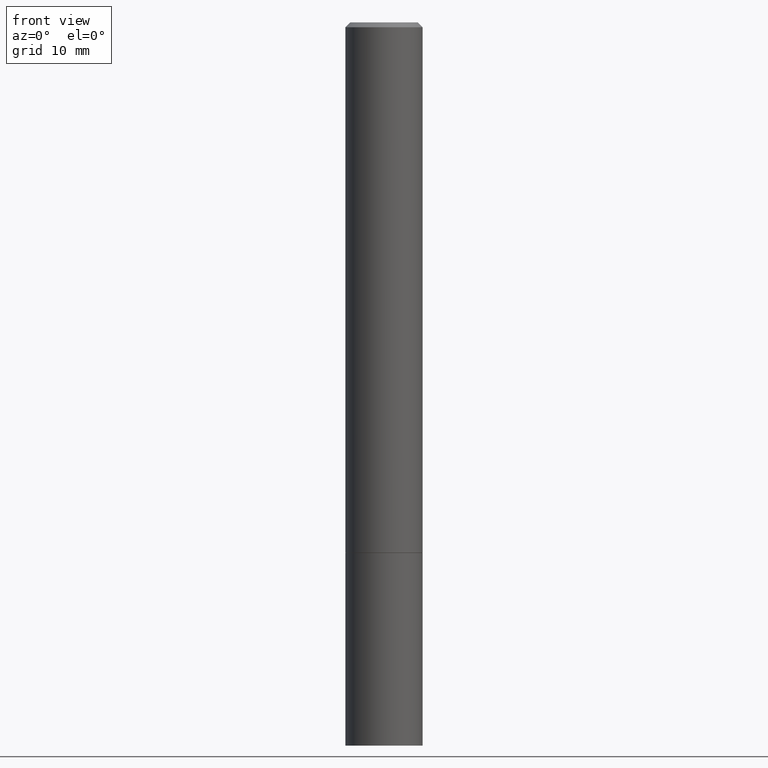
[diagram: clean part render]
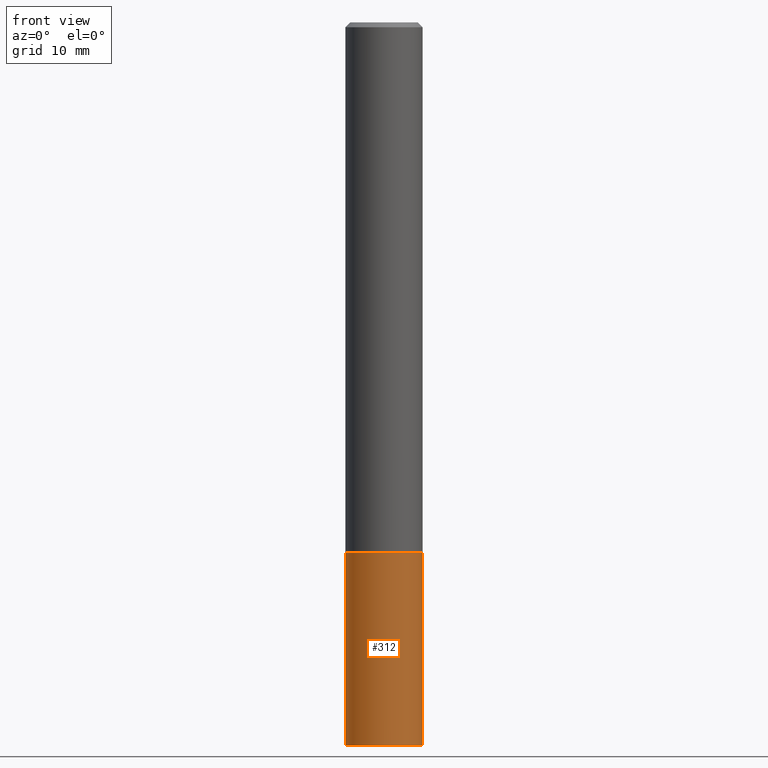
[diagram: same view with one face highlighted and labeled with its STEP entity id]
A machine part, front view. The second image highlights one B-rep face of the part: STEP entity #312.
In plain terms, the highlighted cylindrical surface (partial cylindrical patch) has radius 4.0005 mm, axis along (-0, 0, 1).
Its self-contained STEP definition (entity closure, byte-faithful):
#3 = CARTESIAN_POINT ( 'NONE',  ( 0.1575000000000000011, -8.660270312866534114E-15, -2.165399999999999991 ) ) ;
#16 = CARTESIAN_POINT ( 'NONE',  ( 0.1575000000000000011, -1.099816621735586889E-15, 7.679978421878598033E-30 ) ) ;
#26 = ORIENTED_EDGE ( 'NONE', *, *, #118, .F. ) ;
#45 = CARTESIAN_POINT ( 'NONE',  ( 0.1575000000000000011, -1.140946271907162522E-14, -2.952799999999999869 ) ) ;
#51 = EDGE_CURVE ( 'NONE', #188, #163, #277, .T. ) ;
#54 = DIRECTION ( 'NONE',  ( 1.000000000000000000, -6.982962677686265922E-15, 4.876176775795935232E-29 ) ) ;
#59 = DIRECTION ( 'NONE',  ( -2.445468806185136877E-29, 3.491481338843145188E-15, 1.000000000000000000 ) ) ;
#80 = CARTESIAN_POINT ( 'NONE',  ( 0.000000000000000000, 0.000000000000000000, 0.000000000000000000 ) ) ;
#86 = DIRECTION ( 'NONE',  ( -2.445468806185136877E-29, 3.491481338843145188E-15, 1.000000000000000000 ) ) ;
#118 = EDGE_CURVE ( 'NONE', #188, #137, #159, .T. ) ;
#122 = EDGE_LOOP ( 'NONE', ( #26, #337, #296, #316 ) ) ;
#129 = DIRECTION ( 'NONE',  ( 1.000000000000000000, -6.982962677686268288E-15, 0.000000000000000000 ) ) ;
#136 = CARTESIAN_POINT ( 'NONE',  ( -0.1575000000000000011, 1.119104808822157801E-15, -7.747322767151475583E-30 ) ) ;
#137 = VERTEX_POINT ( 'NONE', #229 ) ;
#151 = AXIS2_PLACEMENT_3D ( 'NONE', #209, #164, #221 ) ;
#152 = AXIS2_PLACEMENT_3D ( 'NONE', #80, #310, #54 ) ;
#159 = LINE ( 'NONE', #136, #354 ) ;
#163 = VERTEX_POINT ( 'NONE', #45 ) ;
#164 = DIRECTION ( 'NONE',  ( -2.445468806185136597E-29, 3.491481338843145583E-15, 1.000000000000000000 ) ) ;
#188 = VERTEX_POINT ( 'NONE', #274 ) ;
#195 = AXIS2_PLACEMENT_3D ( 'NONE', #220, #338, #129 ) ;
#209 = CARTESIAN_POINT ( 'NONE',  ( 7.220980290903470182E-29, -1.030964609733603853E-14, -2.952799999999999869 ) ) ;
#220 = CARTESIAN_POINT ( 'NONE',  ( 5.295418152913294345E-29, -7.560453691130947423E-15, -2.165399999999999991 ) ) ;
#221 = DIRECTION ( 'NONE',  ( 1.000000000000000000, -6.982962677686261977E-15, 0.000000000000000000 ) ) ;
#223 = EDGE_CURVE ( 'NONE', #163, #288, #292, .T. ) ;
#226 = FACE_OUTER_BOUND ( 'NONE', #122, .T. ) ;
#229 = CARTESIAN_POINT ( 'NONE',  ( -0.1575000000000000011, -7.815945085411336161E-15, -2.165399999999999991 ) ) ;
#274 = CARTESIAN_POINT ( 'NONE',  ( -0.1575000000000000011, -7.815945085411336161E-15, -2.952799999999999869 ) ) ;
#277 = CIRCLE ( 'NONE', #151, 0.1575000000000000011 ) ;
#288 = VERTEX_POINT ( 'NONE', #3 ) ;
#290 = EDGE_CURVE ( 'NONE', #137, #288, #306, .T. ) ;
#292 = LINE ( 'NONE', #16, #301 ) ;
#296 = ORIENTED_EDGE ( 'NONE', *, *, #223, .T. ) ;
#301 = VECTOR ( 'NONE', #86, 39.37007874015748143 ) ;
#306 = CIRCLE ( 'NONE', #195, 0.1575000000000000011 ) ;
#310 = DIRECTION ( 'NONE',  ( -2.445468806185136597E-29, 3.491481338843145583E-15, 1.000000000000000000 ) ) ;
#312 = ADVANCED_FACE ( 'NONE', ( #226 ), #344, .T. ) ;
#316 = ORIENTED_EDGE ( 'NONE', *, *, #290, .F. ) ;
#337 = ORIENTED_EDGE ( 'NONE', *, *, #51, .T. ) ;
#338 = DIRECTION ( 'NONE',  ( -2.445468806185136597E-29, 3.491481338843145583E-15, 1.000000000000000000 ) ) ;
#344 = CYLINDRICAL_SURFACE ( 'NONE', #152, 0.1575000000000000011 ) ;
#354 = VECTOR ( 'NONE', #59, 39.37007874015748143 ) ;